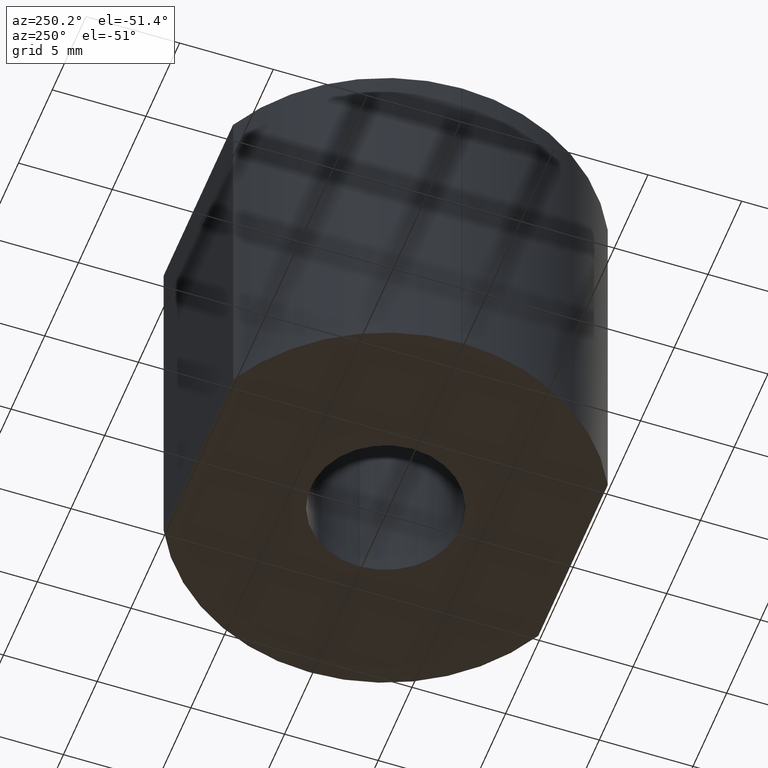
[diagram: clean part render]
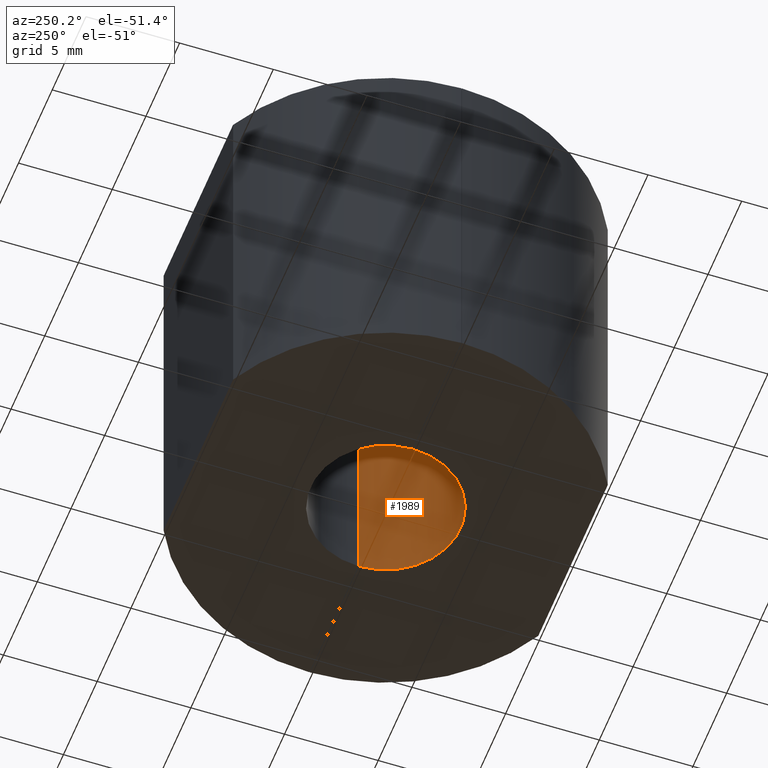
[diagram: same view with one face highlighted and labeled with its STEP entity id]
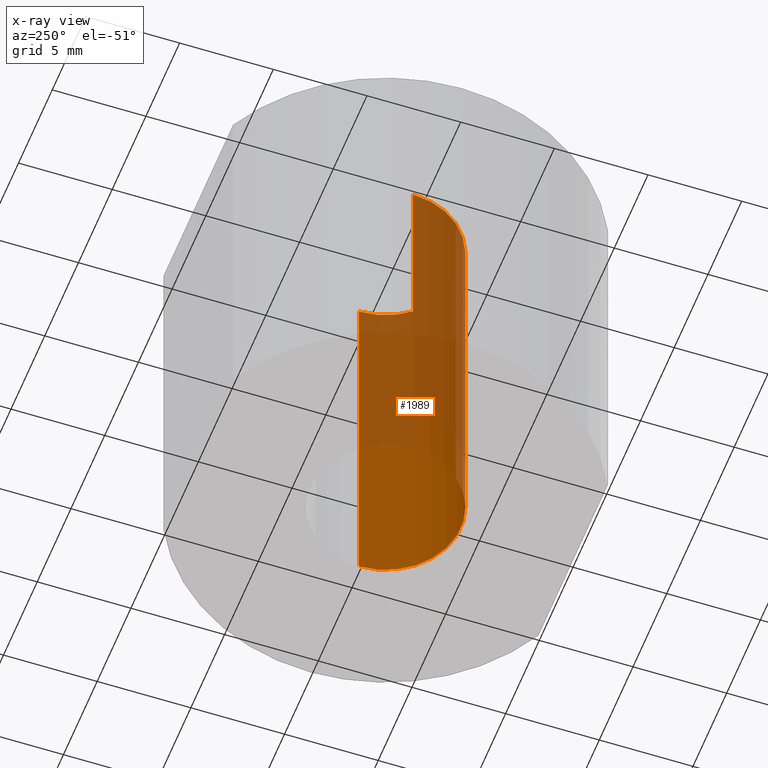
[diagram: x-ray of the same camera — body ghosted, the highlighted face saturated]
A machine part, auxiliary view. The second image highlights one B-rep face of the part: STEP entity #1989.
The next image is the same camera in x-ray: the body ghosted, the highlighted face saturated — about 58% of this face is hidden behind the body in this view.
In plain terms, the highlighted cylindrical surface (partial cylindrical patch) has radius 4 mm, axis along (-0, -0, 1).
Its self-contained STEP definition (entity closure, byte-faithful):
#168 = CARTESIAN_POINT ( 'NONE',  ( -3.999987499980468500, -0.01000000000000000000, 10.25000000000000000 ) ) ;
#178 = CARTESIAN_POINT ( 'NONE',  ( 0.0000000000000000000, 0.0000000000000000000, -10.25000000000000000 ) ) ;
#201 = CARTESIAN_POINT ( 'NONE',  ( 0.0000000000000000000, 0.0000000000000000000, 10.25000000000000000 ) ) ;
#284 = LINE ( 'NONE', #2956, #1473 ) ;
#303 = DIRECTION ( 'NONE',  ( 0.0000000000000000000, 0.0000000000000000000, -1.000000000000000000 ) ) ;
#439 = VERTEX_POINT ( 'NONE', #1142 ) ;
#468 = VERTEX_POINT ( 'NONE', #168 ) ;
#511 = ORIENTED_EDGE ( 'NONE', *, *, #559, .T. ) ;
#559 = EDGE_CURVE ( 'NONE', #468, #2764, #747, .T. ) ;
#563 = ORIENTED_EDGE ( 'NONE', *, *, #1233, .T. ) ;
#624 = CARTESIAN_POINT ( 'NONE',  ( 3.999987499980468500, -0.01000000000000000000, 10.25000000000000000 ) ) ;
#747 = CIRCLE ( 'NONE', #2616, 4.000000000000000000 ) ;
#965 = CIRCLE ( 'NONE', #1501, 4.000000000000000000 ) ;
#978 = EDGE_CURVE ( 'NONE', #2764, #2860, #284, .T. ) ;
#1109 = CARTESIAN_POINT ( 'NONE',  ( 0.0000000000000000000, 0.0000000000000000000, -10.25000000000000000 ) ) ;
#1138 = DIRECTION ( 'NONE',  ( 1.000000000000000000, 0.0000000000000000000, 0.0000000000000000000 ) ) ;
#1142 = CARTESIAN_POINT ( 'NONE',  ( -3.999987499980468500, -0.01000000000000000000, -10.25000000000000000 ) ) ;
#1230 = DIRECTION ( 'NONE',  ( -0.0000000000000000000, -0.0000000000000000000, 1.000000000000000000 ) ) ;
#1233 = EDGE_CURVE ( 'NONE', #439, #468, #2338, .T. ) ;
#1386 = DIRECTION ( 'NONE',  ( 0.0000000000000000000, 0.0000000000000000000, 1.000000000000000000 ) ) ;
#1473 = VECTOR ( 'NONE', #303, 1000.000000000000000 ) ;
#1501 = AXIS2_PLACEMENT_3D ( 'NONE', #178, #1386, #1138 ) ;
#1574 = DIRECTION ( 'NONE',  ( -0.0000000000000000000, -0.0000000000000000000, 1.000000000000000000 ) ) ;
#1609 = DIRECTION ( 'NONE',  ( 0.0000000000000000000, 0.0000000000000000000, 1.000000000000000000 ) ) ;
#1738 = ORIENTED_EDGE ( 'NONE', *, *, #1850, .F. ) ;
#1850 = EDGE_CURVE ( 'NONE', #439, #2860, #965, .T. ) ;
#1989 = ADVANCED_FACE ( 'NONE', ( #2094 ), #2989, .F. ) ;
#2094 = FACE_OUTER_BOUND ( 'NONE', #2617, .T. ) ;
#2129 = DIRECTION ( 'NONE',  ( 1.000000000000000000, 0.0000000000000000000, 0.0000000000000000000 ) ) ;
#2232 = ORIENTED_EDGE ( 'NONE', *, *, #978, .T. ) ;
#2255 = VECTOR ( 'NONE', #1230, 1000.000000000000000 ) ;
#2338 = LINE ( 'NONE', #2680, #2255 ) ;
#2512 = DIRECTION ( 'NONE',  ( 1.000000000000000000, 0.0000000000000000000, 0.0000000000000000000 ) ) ;
#2515 = CARTESIAN_POINT ( 'NONE',  ( 3.999987499980468500, -0.01000000000000000000, -10.25000000000000000 ) ) ;
#2616 = AXIS2_PLACEMENT_3D ( 'NONE', #201, #1609, #2129 ) ;
#2617 = EDGE_LOOP ( 'NONE', ( #511, #2232, #1738, #563 ) ) ;
#2680 = CARTESIAN_POINT ( 'NONE',  ( -3.999987499980468500, -0.01000000000000000000, -10.25000000000000000 ) ) ;
#2750 = AXIS2_PLACEMENT_3D ( 'NONE', #1109, #1574, #2512 ) ;
#2764 = VERTEX_POINT ( 'NONE', #624 ) ;
#2860 = VERTEX_POINT ( 'NONE', #2515 ) ;
#2956 = CARTESIAN_POINT ( 'NONE',  ( 3.999987499980468500, -0.01000000000000000000, -10.25000000000000000 ) ) ;
#2989 = CYLINDRICAL_SURFACE ( 'NONE', #2750, 4.000000000000000000 ) ;